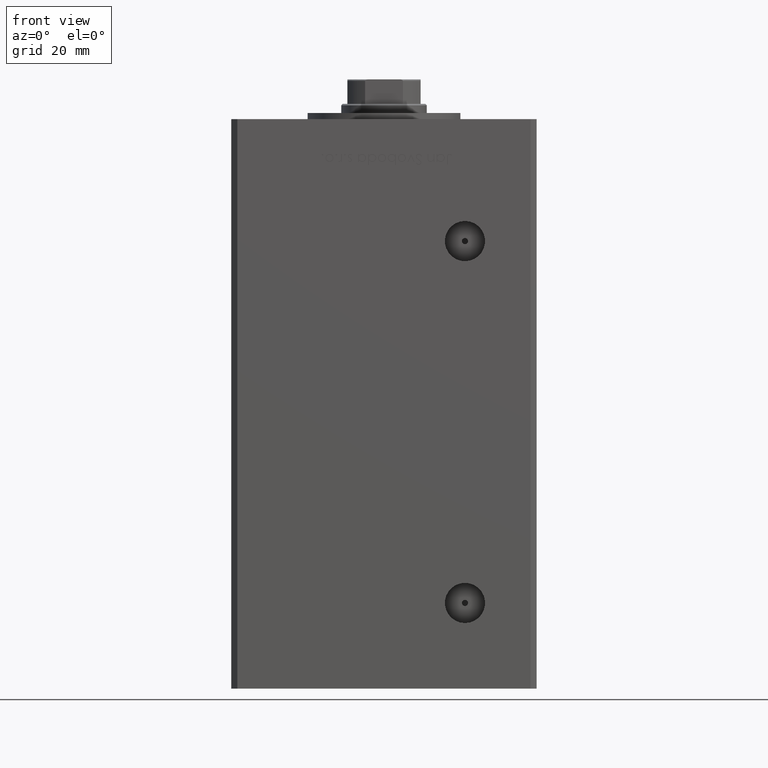
[diagram: clean part render]
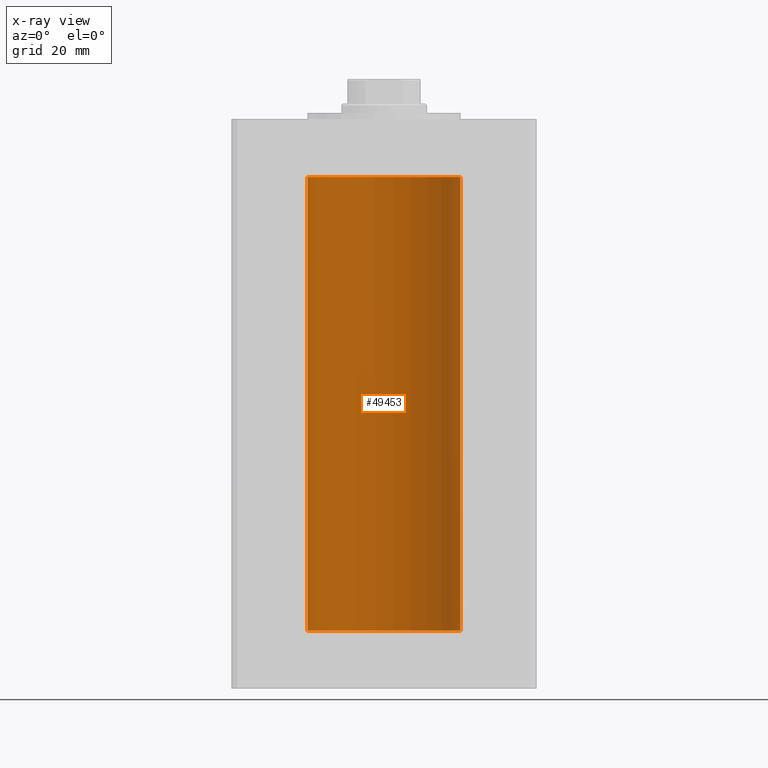
[diagram: x-ray — body ghosted, one internal face saturated and labeled with its STEP entity id]
A machine part, front view, then the same camera in x-ray: the body is ghosted and one INTERNAL B-rep face — a face not visible from any outside direction — is saturated and labeled: STEP entity #49453.
In plain terms, the highlighted cylindrical surface (partial cylindrical patch) has radius 25 mm, axis along (-0, -0, -1).
Its self-contained STEP definition (entity closure, byte-faithful):
#357 = EDGE_LOOP ( 'NONE', ( #29825, #4999, #31451, #27618 ) ) ;
#535 = DIRECTION ( 'NONE',  ( 1.000000000000000000, 0.000000000000000000, 0.000000000000000000 ) ) ;
#2339 = DIRECTION ( 'NONE',  ( -1.000000000000000000, 0.000000000000000000, 0.000000000000000000 ) ) ;
#4190 = CARTESIAN_POINT ( 'NONE',  ( -25.00000000000000000, 0.000000000000000000, 0.000000000000000000 ) ) ;
#4888 = CIRCLE ( 'NONE', #41119, 25.00000000000000000 ) ;
#4999 = ORIENTED_EDGE ( 'NONE', *, *, #38994, .T. ) ;
#5642 = EDGE_CURVE ( 'NONE', #16922, #31916, #13825, .T. ) ;
#6560 = DIRECTION ( 'NONE',  ( -0.000000000000000000, 0.000000000000000000, 1.000000000000000000 ) ) ;
#9056 = VERTEX_POINT ( 'NONE', #36807 ) ;
#9090 = CARTESIAN_POINT ( 'NONE',  ( 25.00000000000000000, 3.061616997868383043E-15, 148.5000000000000000 ) ) ;
#10765 = CARTESIAN_POINT ( 'NONE',  ( 0.000000000000000000, 0.000000000000000000, 148.5000000000000000 ) ) ;
#10870 = VECTOR ( 'NONE', #41300, 1000.000000000000000 ) ;
#13825 = LINE ( 'NONE', #9090, #10870 ) ;
#14739 = AXIS2_PLACEMENT_3D ( 'NONE', #45456, #6560, #20919 ) ;
#16922 = VERTEX_POINT ( 'NONE', #42929 ) ;
#16958 = AXIS2_PLACEMENT_3D ( 'NONE', #10765, #38492, #2339 ) ;
#20326 = CARTESIAN_POINT ( 'NONE',  ( 0.000000000000000000, 0.000000000000000000, 148.5000000000000000 ) ) ;
#20582 = DIRECTION ( 'NONE',  ( -0.000000000000000000, 0.000000000000000000, 1.000000000000000000 ) ) ;
#20919 = DIRECTION ( 'NONE',  ( 1.000000000000000000, 0.000000000000000000, 0.000000000000000000 ) ) ;
#22695 = CARTESIAN_POINT ( 'NONE',  ( -25.00000000000000000, 0.000000000000000000, 148.5000000000000000 ) ) ;
#23035 = VECTOR ( 'NONE', #38794, 1000.000000000000000 ) ;
#24200 = EDGE_CURVE ( 'NONE', #9056, #44169, #42754, .T. ) ;
#27618 = ORIENTED_EDGE ( 'NONE', *, *, #51092, .F. ) ;
#29825 = ORIENTED_EDGE ( 'NONE', *, *, #5642, .F. ) ;
#31451 = ORIENTED_EDGE ( 'NONE', *, *, #24200, .T. ) ;
#31624 = CYLINDRICAL_SURFACE ( 'NONE', #16958, 25.00000000000000000 ) ;
#31916 = VERTEX_POINT ( 'NONE', #49904 ) ;
#33302 = CIRCLE ( 'NONE', #14739, 25.00000000000000000 ) ;
#36807 = CARTESIAN_POINT ( 'NONE',  ( -25.00000000000000000, 0.000000000000000000, 148.5000000000000000 ) ) ;
#38492 = DIRECTION ( 'NONE',  ( -0.000000000000000000, -0.000000000000000000, -1.000000000000000000 ) ) ;
#38794 = DIRECTION ( 'NONE',  ( -0.000000000000000000, -0.000000000000000000, -1.000000000000000000 ) ) ;
#38994 = EDGE_CURVE ( 'NONE', #16922, #9056, #4888, .T. ) ;
#39531 = FACE_OUTER_BOUND ( 'NONE', #357, .T. ) ;
#41119 = AXIS2_PLACEMENT_3D ( 'NONE', #20326, #20582, #535 ) ;
#41300 = DIRECTION ( 'NONE',  ( -0.000000000000000000, -0.000000000000000000, -1.000000000000000000 ) ) ;
#42754 = LINE ( 'NONE', #22695, #23035 ) ;
#42929 = CARTESIAN_POINT ( 'NONE',  ( 25.00000000000000000, 3.061616997868383043E-15, 148.5000000000000000 ) ) ;
#44169 = VERTEX_POINT ( 'NONE', #4190 ) ;
#45456 = CARTESIAN_POINT ( 'NONE',  ( 0.000000000000000000, 0.000000000000000000, 0.000000000000000000 ) ) ;
#49453 = ADVANCED_FACE ( 'NONE', ( #39531 ), #31624, .F. ) ;
#49904 = CARTESIAN_POINT ( 'NONE',  ( 25.00000000000000000, 3.061616997868383043E-15, 0.000000000000000000 ) ) ;
#51092 = EDGE_CURVE ( 'NONE', #31916, #44169, #33302, .T. ) ;